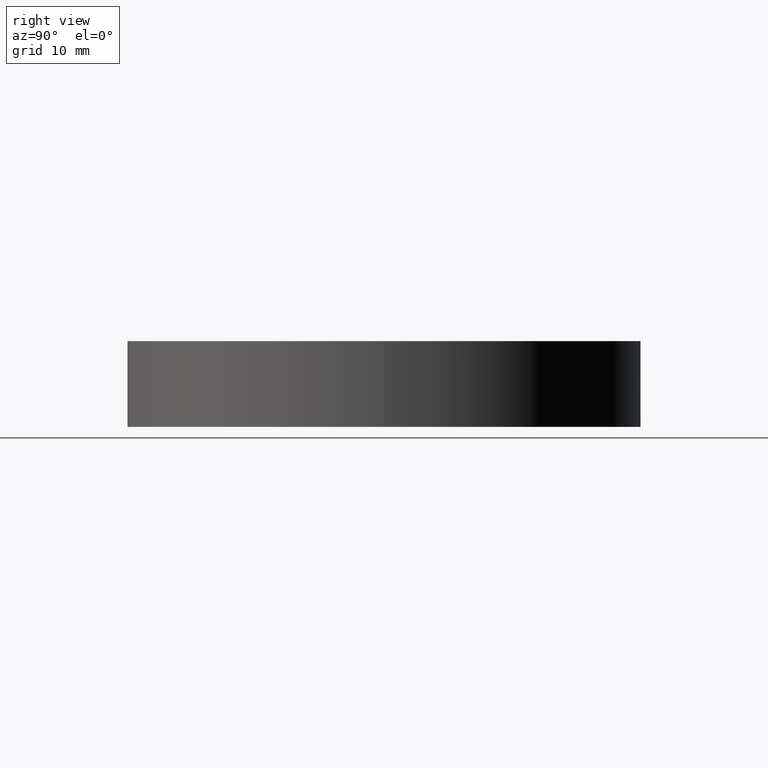
[diagram: clean part render]
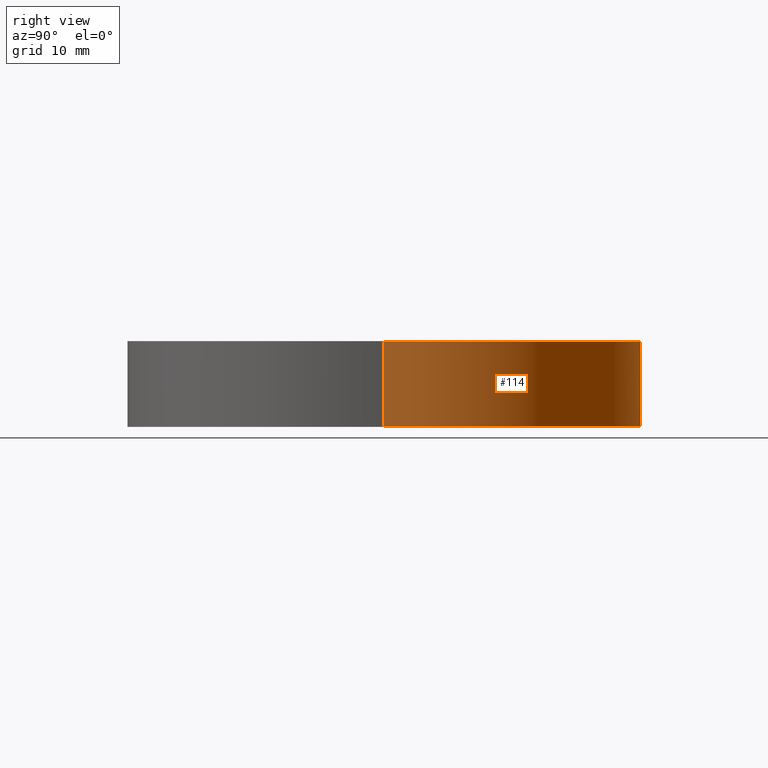
[diagram: same view with one face highlighted and labeled with its STEP entity id]
A machine part, right view. The second image highlights one B-rep face of the part: STEP entity #114.
In plain terms, the highlighted cylindrical surface (partial cylindrical patch) has radius 38.1 mm, axis along (-0, -0, -1).
Its self-contained STEP definition (entity closure, byte-faithful):
#3 = CYLINDRICAL_SURFACE ( 'NONE', #182, 38.10000000000000142 ) ;
#14 = EDGE_CURVE ( 'NONE', #110, #144, #129, .T. ) ;
#17 = LINE ( 'NONE', #117, #160 ) ;
#19 = CARTESIAN_POINT ( 'NONE',  ( 38.10000000000000142, 4.665904304751416087E-15, 0.000000000000000000 ) ) ;
#25 = EDGE_CURVE ( 'NONE', #106, #110, #17, .T. ) ;
#28 = CIRCLE ( 'NONE', #60, 38.10000000000062670 ) ;
#33 = ORIENTED_EDGE ( 'NONE', *, *, #25, .T. ) ;
#34 = CARTESIAN_POINT ( 'NONE',  ( -38.10000000000000142, 0.000000000000000000, 12.69999999999999929 ) ) ;
#37 = DIRECTION ( 'NONE',  ( -0.000000000000000000, -0.000000000000000000, -1.000000000000000000 ) ) ;
#48 = VERTEX_POINT ( 'NONE', #161 ) ;
#49 = VECTOR ( 'NONE', #98, 1000.000000000000000 ) ;
#50 = ORIENTED_EDGE ( 'NONE', *, *, #125, .T. ) ;
#51 = CARTESIAN_POINT ( 'NONE',  ( 0.000000000000000000, 0.000000000000000000, 0.000000000000000000 ) ) ;
#55 = LINE ( 'NONE', #34, #49 ) ;
#58 = CARTESIAN_POINT ( 'NONE',  ( 0.000000000000000000, 0.000000000000000000, 12.69999999999999929 ) ) ;
#60 = AXIS2_PLACEMENT_3D ( 'NONE', #137, #191, #82 ) ;
#70 = DIRECTION ( 'NONE',  ( -1.000000000000000000, 0.000000000000000000, 0.000000000000000000 ) ) ;
#80 = ORIENTED_EDGE ( 'NONE', *, *, #140, .F. ) ;
#82 = DIRECTION ( 'NONE',  ( 1.000000000000000000, 0.000000000000000000, 0.000000000000000000 ) ) ;
#85 = CARTESIAN_POINT ( 'NONE',  ( -38.10000000000000142, 0.000000000000000000, 0.000000000000000000 ) ) ;
#98 = DIRECTION ( 'NONE',  ( -0.000000000000000000, -0.000000000000000000, -1.000000000000000000 ) ) ;
#106 = VERTEX_POINT ( 'NONE', #165 ) ;
#110 = VERTEX_POINT ( 'NONE', #19 ) ;
#113 = EDGE_LOOP ( 'NONE', ( #50, #33, #178, #80 ) ) ;
#114 = ADVANCED_FACE ( 'NONE', ( #193 ), #3, .T. ) ;
#117 = CARTESIAN_POINT ( 'NONE',  ( 38.10000000000000142, 4.665904304751416087E-15, 12.69999999999999929 ) ) ;
#125 = EDGE_CURVE ( 'NONE', #48, #106, #28, .T. ) ;
#129 = CIRCLE ( 'NONE', #201, 38.10000000000000142 ) ;
#135 = DIRECTION ( 'NONE',  ( 1.000000000000000000, 0.000000000000000000, 0.000000000000000000 ) ) ;
#137 = CARTESIAN_POINT ( 'NONE',  ( 9.714451465470119729E-14, 0.000000000000000000, 12.70000000000004547 ) ) ;
#140 = EDGE_CURVE ( 'NONE', #48, #144, #55, .T. ) ;
#144 = VERTEX_POINT ( 'NONE', #85 ) ;
#149 = DIRECTION ( 'NONE',  ( 0.000000000000000000, 0.000000000000000000, 1.000000000000000000 ) ) ;
#151 = DIRECTION ( 'NONE',  ( -0.000000000000000000, -0.000000000000000000, -1.000000000000000000 ) ) ;
#160 = VECTOR ( 'NONE', #151, 1000.000000000000000 ) ;
#161 = CARTESIAN_POINT ( 'NONE',  ( -38.10000000000052722, 0.000000000000000000, 12.70000000000004547 ) ) ;
#165 = CARTESIAN_POINT ( 'NONE',  ( 38.10000000000072617, 4.665904304751504439E-15, 12.70000000000004547 ) ) ;
#178 = ORIENTED_EDGE ( 'NONE', *, *, #14, .T. ) ;
#182 = AXIS2_PLACEMENT_3D ( 'NONE', #58, #37, #70 ) ;
#191 = DIRECTION ( 'NONE',  ( -0.000000000000000000, -0.000000000000000000, -1.000000000000000000 ) ) ;
#193 = FACE_OUTER_BOUND ( 'NONE', #113, .T. ) ;
#201 = AXIS2_PLACEMENT_3D ( 'NONE', #51, #149, #135 ) ;